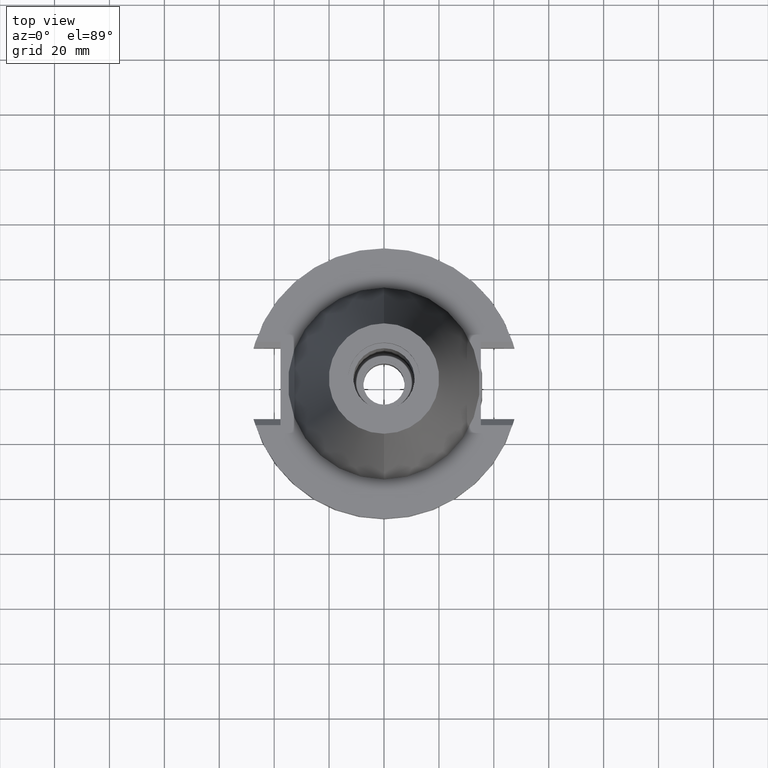
[diagram: clean part render]
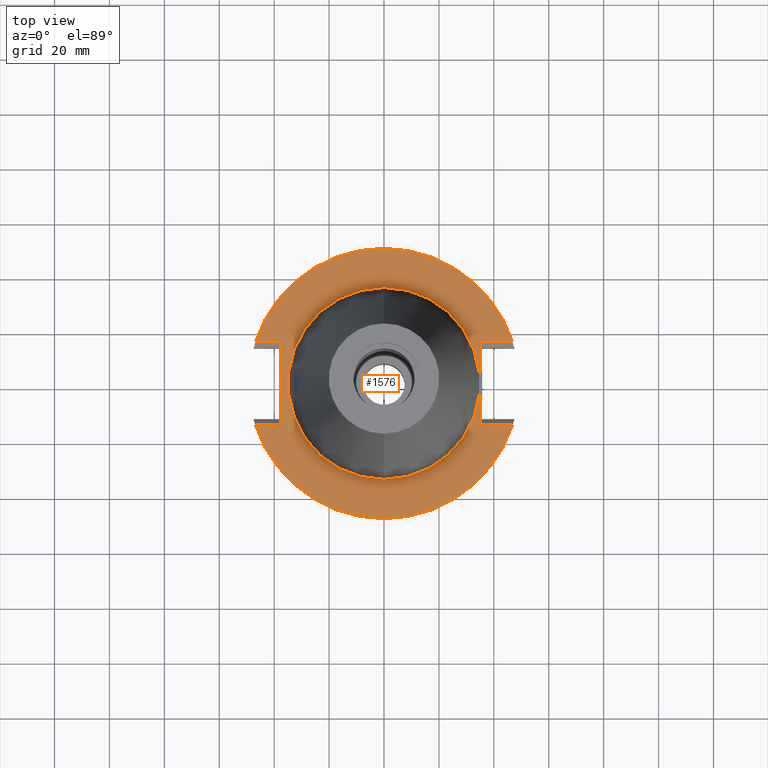
[diagram: same view with one face highlighted and labeled with its STEP entity id]
A machine part, top view. The second image highlights one B-rep face of the part: STEP entity #1576.
In plain terms, the highlighted planar face has unit normal (0, 0, 1).
Its self-contained STEP definition (entity closure, byte-faithful):
#94=DIRECTION('',(0.E0,-1.E0,0.E0));
#95=VECTOR('',#94,3.031E1);
#96=CARTESIAN_POINT('',(3.527E1,1.5155E1,-1.5E0));
#97=LINE('',#96,#95);
#101=DIRECTION('',(1.E0,0.E0,0.E0));
#102=VECTOR('',#101,1.155089417397E1);
#103=CARTESIAN_POINT('',(3.527E1,-1.5155E1,-1.5E0));
#104=LINE('',#103,#102);
#108=CARTESIAN_POINT('',(0.E0,0.E0,-1.5E0));
#109=DIRECTION('',(0.E0,0.E0,-1.E0));
#110=DIRECTION('',(9.514024724200E-1,-3.079502159004E-1,0.E0));
#111=AXIS2_PLACEMENT_3D('',#108,#109,#110);
#116=CARTESIAN_POINT('',(0.E0,0.E0,-1.5E0));
#117=DIRECTION('',(0.E0,0.E0,-1.E0));
#118=DIRECTION('',(0.E0,-1.E0,0.E0));
#119=AXIS2_PLACEMENT_3D('',#116,#117,#118);
#124=DIRECTION('',(0.E0,1.E0,0.E0));
#125=VECTOR('',#124,3.031E1);
#126=CARTESIAN_POINT('',(-3.768E1,-1.5155E1,-1.5E0));
#127=LINE('',#126,#125);
#131=DIRECTION('',(-1.E0,-1.029952985960E-14,0.E0));
#132=VECTOR('',#131,9.140894173969E0);
#133=CARTESIAN_POINT('',(-3.768E1,1.5155E1,-1.5E0));
#134=LINE('',#133,#132);
#138=CARTESIAN_POINT('',(0.E0,0.E0,-1.5E0));
#139=DIRECTION('',(0.E0,0.E0,-1.E0));
#140=DIRECTION('',(-9.514024724200E-1,3.079502159004E-1,0.E0));
#141=AXIS2_PLACEMENT_3D('',#138,#139,#140);
#146=CARTESIAN_POINT('',(0.E0,0.E0,-1.5E0));
#147=DIRECTION('',(0.E0,0.E0,-1.E0));
#148=DIRECTION('',(0.E0,1.E0,0.E0));
#149=AXIS2_PLACEMENT_3D('',#146,#147,#148);
#154=CARTESIAN_POINT('',(0.E0,0.E0,-1.5E0));
#155=DIRECTION('',(0.E0,0.E0,1.E0));
#156=DIRECTION('',(0.E0,-1.E0,0.E0));
#157=AXIS2_PLACEMENT_3D('',#154,#155,#156);
#162=CARTESIAN_POINT('',(0.E0,0.E0,-1.5E0));
#163=DIRECTION('',(0.E0,0.E0,1.E0));
#164=DIRECTION('',(0.E0,1.E0,0.E0));
#165=AXIS2_PLACEMENT_3D('',#162,#163,#164);
#289=DIRECTION('',(1.E0,0.E0,0.E0));
#290=VECTOR('',#289,1.155089417397E1);
#291=CARTESIAN_POINT('',(3.527E1,1.5155E1,-1.5E0));
#292=LINE('',#291,#290);
#576=DIRECTION('',(-1.E0,1.010519910753E-14,0.E0));
#577=VECTOR('',#576,9.140894173969E0);
#578=CARTESIAN_POINT('',(-3.768E1,-1.5155E1,-1.5E0));
#579=LINE('',#578,#577);
#1270=CARTESIAN_POINT('',(0.E0,3.4925E1,-1.5E0));
#1271=VERTEX_POINT('',#1270);
#1272=CARTESIAN_POINT('',(0.E0,-3.4925E1,-1.5E0));
#1273=VERTEX_POINT('',#1272);
#1274=CARTESIAN_POINT('',(3.527E1,1.5155E1,-1.5E0));
#1275=CARTESIAN_POINT('',(3.527E1,-1.5155E1,-1.5E0));
#1276=VERTEX_POINT('',#1274);
#1277=VERTEX_POINT('',#1275);
#1278=CARTESIAN_POINT('',(4.682089417397E1,-1.5155E1,-1.5E0));
#1279=VERTEX_POINT('',#1278);
#1280=CARTESIAN_POINT('',(-6.280856145559E-14,-4.92125E1,-1.5E0));
#1281=CARTESIAN_POINT('',(-4.682089417397E1,-1.5155E1,-1.5E0));
#1282=VERTEX_POINT('',#1280);
#1283=VERTEX_POINT('',#1281);
#1284=CARTESIAN_POINT('',(-3.768E1,-1.5155E1,-1.5E0));
#1285=VERTEX_POINT('',#1284);
#1286=CARTESIAN_POINT('',(-3.768E1,1.5155E1,-1.5E0));
#1287=VERTEX_POINT('',#1286);
#1288=CARTESIAN_POINT('',(-4.682089417397E1,1.5155E1,-1.5E0));
#1289=VERTEX_POINT('',#1288);
#1290=CARTESIAN_POINT('',(6.280856145559E-14,4.92125E1,-1.5E0));
#1291=CARTESIAN_POINT('',(4.682089417397E1,1.5155E1,-1.5E0));
#1292=VERTEX_POINT('',#1290);
#1293=VERTEX_POINT('',#1291);
#1545=CARTESIAN_POINT('',(0.E0,0.E0,-1.5E0));
#1546=DIRECTION('',(0.E0,0.E0,1.E0));
#1547=DIRECTION('',(0.E0,1.E0,0.E0));
#1548=AXIS2_PLACEMENT_3D('',#1545,#1546,#1547);
#1549=PLANE('',#1548);
#1551=ORIENTED_EDGE('',*,*,#1550,.T.);
#1553=ORIENTED_EDGE('',*,*,#1552,.T.);
#1555=ORIENTED_EDGE('',*,*,#1554,.T.);
#1557=ORIENTED_EDGE('',*,*,#1556,.T.);
#1559=ORIENTED_EDGE('',*,*,#1558,.F.);
#1561=ORIENTED_EDGE('',*,*,#1560,.T.);
#1563=ORIENTED_EDGE('',*,*,#1562,.T.);
#1565=ORIENTED_EDGE('',*,*,#1564,.T.);
#1567=ORIENTED_EDGE('',*,*,#1566,.T.);
#1569=ORIENTED_EDGE('',*,*,#1568,.F.);
#1570=EDGE_LOOP('',(#1551,#1553,#1555,#1557,#1559,#1561,#1563,#1565,#1567,
#1569));
#1571=FACE_OUTER_BOUND('',#1570,.F.);
#1572=ORIENTED_EDGE('',*,*,#1524,.T.);
#1573=ORIENTED_EDGE('',*,*,#1540,.T.);
#1574=EDGE_LOOP('',(#1572,#1573));
#1575=FACE_BOUND('',#1574,.F.);
#112=CIRCLE('',#111,4.92125E1);
#120=CIRCLE('',#119,4.92125E1);
#142=CIRCLE('',#141,4.92125E1);
#150=CIRCLE('',#149,4.92125E1);
#158=CIRCLE('',#157,3.4925E1);
#166=CIRCLE('',#165,3.4925E1);
#1524=EDGE_CURVE('',#1273,#1271,#158,.T.);
#1540=EDGE_CURVE('',#1271,#1273,#166,.T.);
#1550=EDGE_CURVE('',#1276,#1277,#97,.T.);
#1552=EDGE_CURVE('',#1277,#1279,#104,.T.);
#1554=EDGE_CURVE('',#1279,#1282,#112,.T.);
#1556=EDGE_CURVE('',#1282,#1283,#120,.T.);
#1558=EDGE_CURVE('',#1285,#1283,#579,.T.);
#1560=EDGE_CURVE('',#1285,#1287,#127,.T.);
#1562=EDGE_CURVE('',#1287,#1289,#134,.T.);
#1564=EDGE_CURVE('',#1289,#1292,#142,.T.);
#1566=EDGE_CURVE('',#1292,#1293,#150,.T.);
#1568=EDGE_CURVE('',#1276,#1293,#292,.T.);
#1576=ADVANCED_FACE('',(#1571,#1575),#1549,.T.);